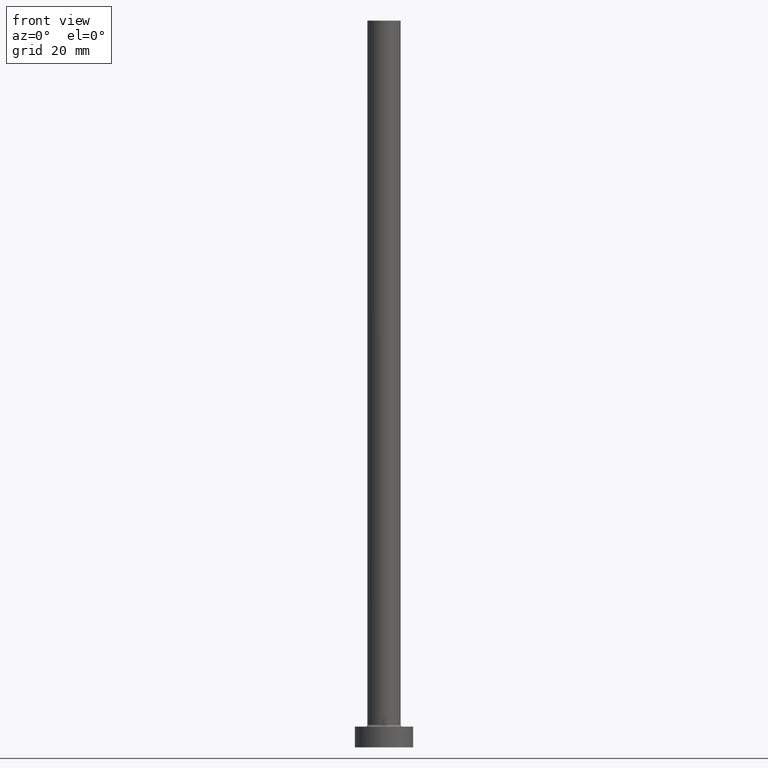
[diagram: clean part render]
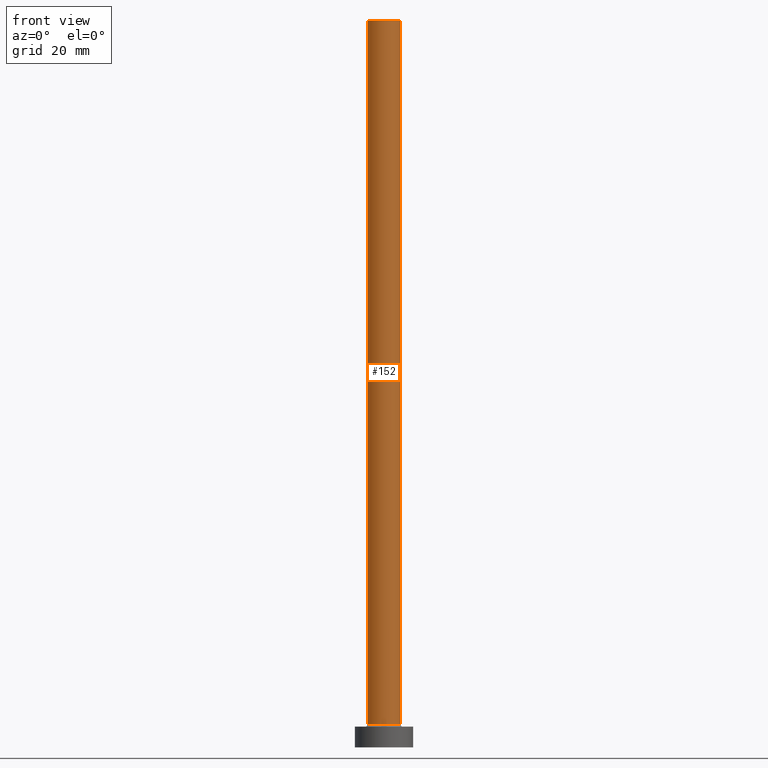
[diagram: same view with one face highlighted and labeled with its STEP entity id]
A machine part, front view. The second image highlights one B-rep face of the part: STEP entity #152.
In plain terms, the highlighted cylindrical surface (edge-blend (fillet) strip) has radius 4 mm, axis along (-0, -0, -1).
Its self-contained STEP definition (entity closure, byte-faithful):
#4 = ORIENTED_EDGE ( 'NONE', *, *, #135, .F. ) ;
#20 = AXIS2_PLACEMENT_3D ( 'NONE', #382, #415, #414 ) ;
#22 = DIRECTION ( 'NONE',  ( 0.000000000000000000, 0.000000000000000000, 1.000000000000000000 ) ) ;
#39 = CARTESIAN_POINT ( 'NONE',  ( -4.000000000000000000, 0.000000000000000000, 175.0000000000000284 ) ) ;
#61 = CARTESIAN_POINT ( 'NONE',  ( -4.000000000000000000, 0.000000000000000000, 5.500000000000005329 ) ) ;
#67 = CARTESIAN_POINT ( 'NONE',  ( 4.000000000000000000, 4.898587196589412829E-16, 175.0000000000000284 ) ) ;
#91 = FACE_OUTER_BOUND ( 'NONE', #193, .T. ) ;
#108 = LINE ( 'NONE', #67, #417 ) ;
#114 = VERTEX_POINT ( 'NONE', #122 ) ;
#122 = CARTESIAN_POINT ( 'NONE',  ( 4.000000000000000000, 4.898587196589412829E-16, 5.500000000000005329 ) ) ;
#131 = DIRECTION ( 'NONE',  ( -1.000000000000000000, 0.000000000000000000, 0.000000000000000000 ) ) ;
#133 = DIRECTION ( 'NONE',  ( -0.000000000000000000, -0.000000000000000000, -1.000000000000000000 ) ) ;
#135 = EDGE_CURVE ( 'NONE', #450, #358, #241, .T. ) ;
#147 = CARTESIAN_POINT ( 'NONE',  ( -4.000000000000000000, 0.000000000000000000, 175.0000000000000284 ) ) ;
#152 = ADVANCED_FACE ( 'NONE', ( #91 ), #213, .T. ) ;
#153 = CARTESIAN_POINT ( 'NONE',  ( 4.000000000000000000, 4.898587196589412829E-16, 175.0000000000000284 ) ) ;
#155 = CIRCLE ( 'NONE', #20, 4.000000000000000000 ) ;
#193 = EDGE_LOOP ( 'NONE', ( #252, #4, #356, #399 ) ) ;
#213 = CYLINDRICAL_SURFACE ( 'NONE', #340, 4.000000000000000000 ) ;
#226 = VECTOR ( 'NONE', #452, 1000.000000000000000 ) ;
#238 = EDGE_CURVE ( 'NONE', #260, #114, #155, .T. ) ;
#241 = CIRCLE ( 'NONE', #424, 4.000000000000000000 ) ;
#252 = ORIENTED_EDGE ( 'NONE', *, *, #460, .F. ) ;
#260 = VERTEX_POINT ( 'NONE', #61 ) ;
#313 = DIRECTION ( 'NONE',  ( 1.000000000000000000, 0.000000000000000000, 0.000000000000000000 ) ) ;
#320 = CARTESIAN_POINT ( 'NONE',  ( 0.000000000000000000, 0.000000000000000000, 175.0000000000000284 ) ) ;
#340 = AXIS2_PLACEMENT_3D ( 'NONE', #320, #133, #131 ) ;
#352 = LINE ( 'NONE', #39, #226 ) ;
#356 = ORIENTED_EDGE ( 'NONE', *, *, #395, .T. ) ;
#358 = VERTEX_POINT ( 'NONE', #153 ) ;
#382 = CARTESIAN_POINT ( 'NONE',  ( 0.000000000000000000, 0.000000000000000000, 5.500000000000005329 ) ) ;
#395 = EDGE_CURVE ( 'NONE', #450, #260, #352, .T. ) ;
#399 = ORIENTED_EDGE ( 'NONE', *, *, #238, .T. ) ;
#414 = DIRECTION ( 'NONE',  ( 1.000000000000000000, 0.000000000000000000, 0.000000000000000000 ) ) ;
#415 = DIRECTION ( 'NONE',  ( 0.000000000000000000, 0.000000000000000000, 1.000000000000000000 ) ) ;
#417 = VECTOR ( 'NONE', #461, 1000.000000000000000 ) ;
#424 = AXIS2_PLACEMENT_3D ( 'NONE', #444, #22, #313 ) ;
#444 = CARTESIAN_POINT ( 'NONE',  ( 0.000000000000000000, 0.000000000000000000, 175.0000000000000284 ) ) ;
#450 = VERTEX_POINT ( 'NONE', #147 ) ;
#452 = DIRECTION ( 'NONE',  ( -0.000000000000000000, -0.000000000000000000, -1.000000000000000000 ) ) ;
#460 = EDGE_CURVE ( 'NONE', #358, #114, #108, .T. ) ;
#461 = DIRECTION ( 'NONE',  ( -0.000000000000000000, -0.000000000000000000, -1.000000000000000000 ) ) ;